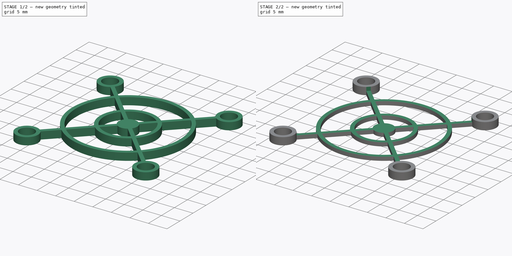
[diagram: build sequence overview — one tinted view per stage of 2, left to right]
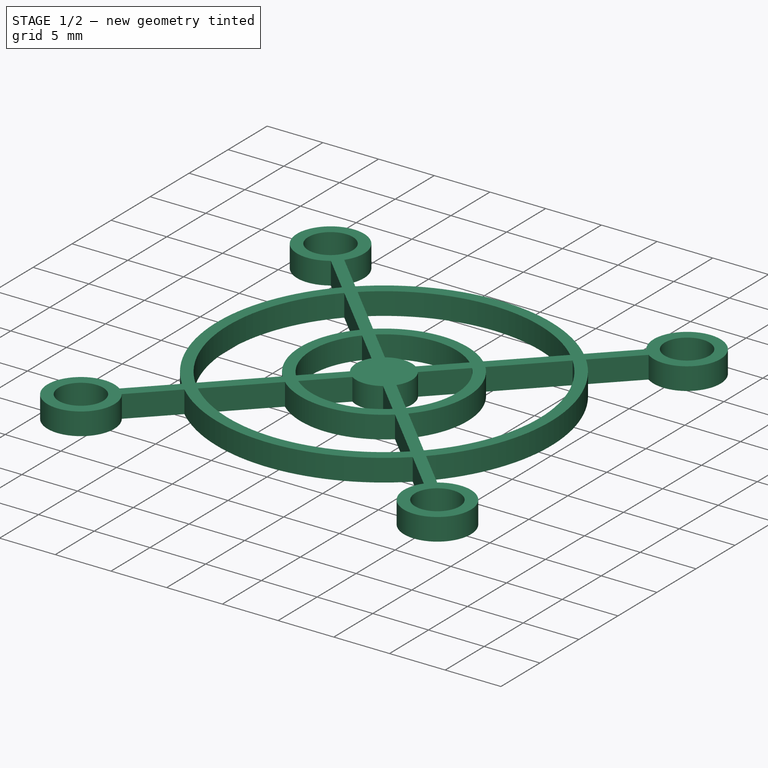
[diagram: stage 1 of 2 — iso view after this stage's code; geometry added in this stage tinted green]
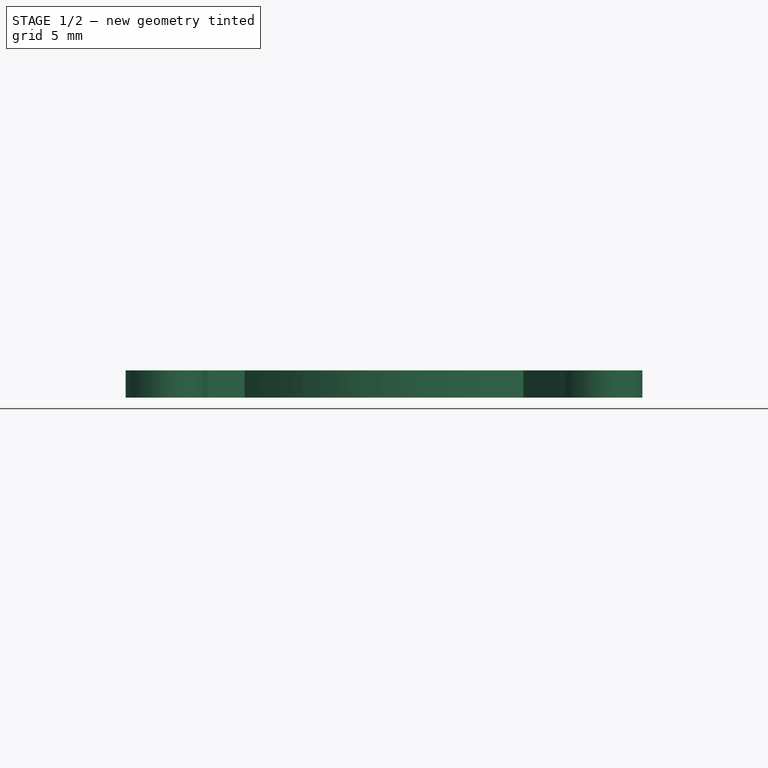
[diagram: stage 1 of 2 — front view after this stage's code; geometry added in this stage tinted green]
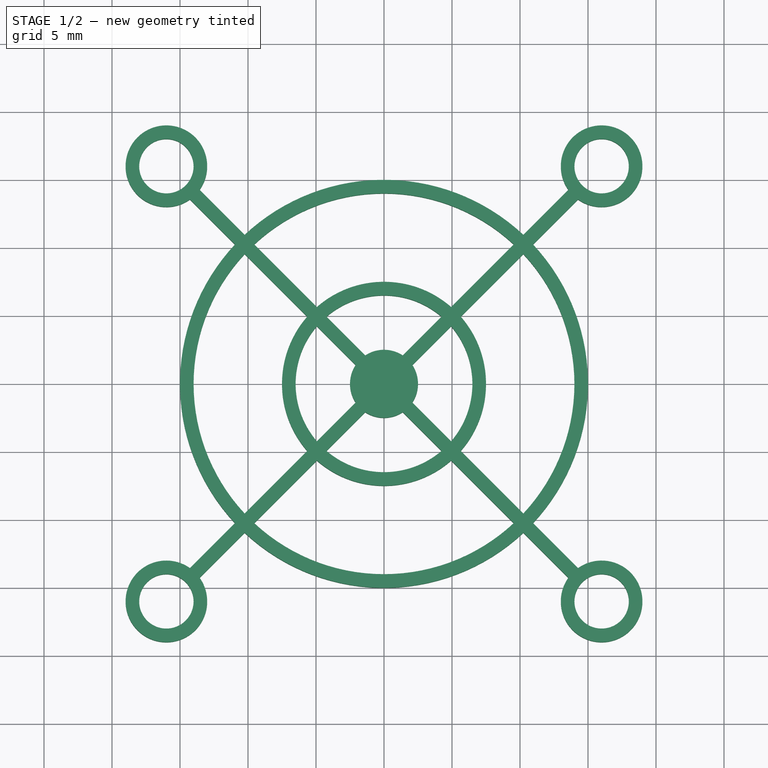
[diagram: stage 1 of 2 — top view after this stage's code; geometry added in this stage tinted green]
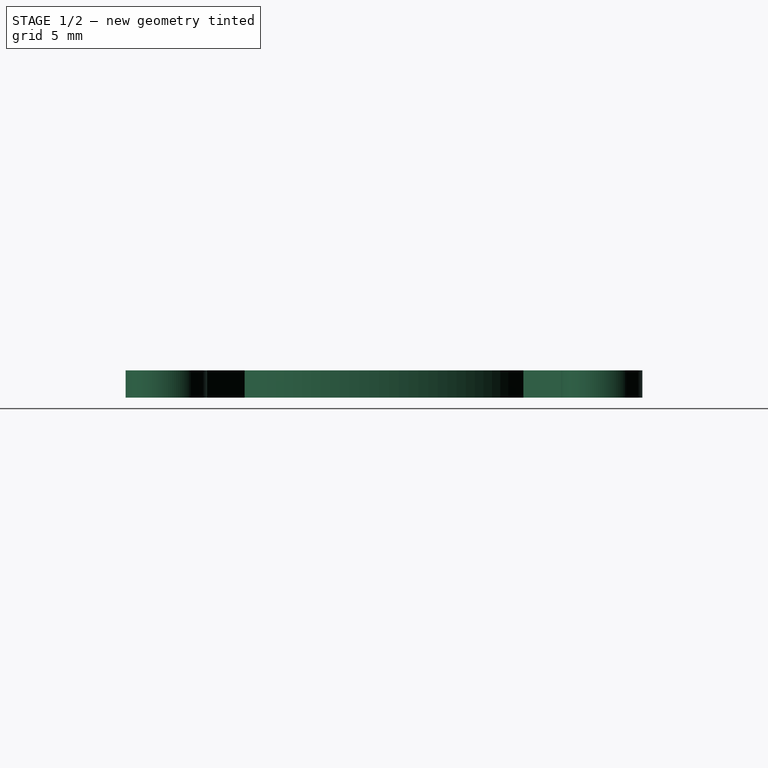
[diagram: stage 1 of 2 — right view after this stage's code; geometry added in this stage tinted green]
FCSTD DOCUMENT  (FreeCAD 0.18R14555 (Git shallow))
Label: fan-cover
License: All rights reserved
LicenseURL: http://en.wikipedia.org/wiki/All_rights_reserved
objects: Sketcher::SketchObject×2, PartDesign::Pad×1, PartDesign::Pocket×1, PartDesign::Body×1
note: 7 computed .brp shape members not serialized (recipe doc carries the construction recipe); baked Part::Feature solids carry a one-line shape summary decoded from their .brp

FEATURE [Sketcher::SketchObject] Sketch
  MapMode = 5
  Support = -> [XY_Plane]
  sketch-geometry (87):
    g0: LineSegment [constr] StartX=0 StartY=0 StartZ=0 EndX=40 EndY=0 EndZ=0
    g1: LineSegment [constr] StartX=40 StartY=0 StartZ=0 EndX=40 EndY=40 EndZ=0
    g2: LineSegment [constr] StartX=40 StartY=40 StartZ=0 EndX=0 EndY=40 EndZ=0
    g3: LineSegment [constr] StartX=0 StartY=40 StartZ=0 EndX=0 EndY=0 EndZ=0
    g4: LineSegment [constr] StartX=4 StartY=4 StartZ=0 EndX=36 EndY=4 EndZ=0
    g5: LineSegment [constr] StartX=36 StartY=4 StartZ=0 EndX=36 EndY=36 EndZ=0
    g6: LineSegment [constr] StartX=36 StartY=36 StartZ=0 EndX=4 EndY=36 EndZ=0
    g7: LineSegment [constr] StartX=4 StartY=36 StartZ=0 EndX=4 EndY=4 EndZ=0
    g8: LineSegment [constr] StartX=0 StartY=0 StartZ=0 EndX=4 EndY=4 EndZ=0
    g9: LineSegment [constr] StartX=4 StartY=36 StartZ=0 EndX=0 EndY=40 EndZ=0
    g10: LineSegment [constr] StartX=36 StartY=36 StartZ=0 EndX=40 EndY=40 EndZ=0
    g11: Circle CenterX=4 CenterY=36 CenterZ=0 NormalX=0 NormalY=0 NormalZ=1 AngleXU=0 Radius=2
    g12: Circle CenterX=36 CenterY=36 CenterZ=0 NormalX=0 NormalY=0 NormalZ=1 AngleXU=0 Radius=2
    g13: Circle CenterX=4 CenterY=4 CenterZ=0 NormalX=0 NormalY=0 NormalZ=1 AngleXU=0 Radius=2
    g14: Circle CenterX=36 CenterY=4 CenterZ=0 NormalX=0 NormalY=0 NormalZ=1 AngleXU=0 Radius=2
    g15: ArcOfCircle CenterX=4 CenterY=36 CenterZ=0 NormalX=0 NormalY=0 NormalZ=1 AngleXU=0 Radius=3 StartAngle=5.66524 EndAngle=11.6135
    g16: ArcOfCircle CenterX=36 CenterY=36 CenterZ=0 NormalX=0 NormalY=0 NormalZ=1 AngleXU=0 Radius=3 StartAngle=4.09444 EndAngle=10.0427
    g17: ArcOfCircle CenterX=36 CenterY=4 CenterZ=0 NormalX=0 NormalY=0 NormalZ=1 AngleXU=0 Radius=3 StartAngle=2.52364 EndAngle=8.47193
    g18: ArcOfCircle CenterX=4 CenterY=4 CenterZ=0 NormalX=0 NormalY=0 NormalZ=1 AngleXU=0 Radius=3 StartAngle=0.952846 EndAngle=6.90114
    g19: LineSegment [constr] StartX=4 StartY=4 StartZ=0 EndX=36 EndY=36 EndZ=0
    g20: LineSegment [constr] StartX=4 StartY=36 StartZ=0 EndX=36 EndY=4 EndZ=0
    g21: ArcOfCircle CenterX=20 CenterY=20 CenterZ=0 NormalX=0 NormalY=0 NormalZ=1 AngleXU=0 Radius=15 StartAngle=2.38953 EndAngle=3.89365
    g22: ArcOfCircle CenterX=20 CenterY=20 CenterZ=0 NormalX=0 NormalY=0 NormalZ=1 AngleXU=0 Radius=14 StartAngle=5.53351 EndAngle=7.03286
    g23: ArcOfCircle CenterX=20 CenterY=20 CenterZ=0 NormalX=0 NormalY=0 NormalZ=1 AngleXU=0 Radius=7.5 StartAngle=2.42291 EndAngle=3.86027
    g24: ArcOfCircle CenterX=20 CenterY=20 CenterZ=0 NormalX=0 NormalY=0 NormalZ=1 AngleXU=0 Radius=6.5 StartAngle=5.57479 EndAngle=6.99158
    g25: ArcOfCircle CenterX=20 CenterY=20 CenterZ=0 NormalX=0 NormalY=0 NormalZ=1 AngleXU=0 Radius=2.5 StartAngle=2.55755 EndAngle=3.72563
    g26: LineSegment StartX=5.7381 StartY=33.5548 StartZ=0 EndX=9.04574 EndY=30.2472 EndZ=0
    g27: LineSegment StartX=6.4452 StartY=34.2619 StartZ=0 EndX=9.75285 EndY=30.9543 EndZ=0
    g28: LineSegment [constr] StartX=5.7381 StartY=33.5548 StartZ=0 EndX=6.4452 EndY=34.2619 EndZ=0
    g29: LineSegment StartX=9.75327 StartY=29.5396 StartZ=0 EndX=14.3549 EndY=24.9379 EndZ=0
    g30: LineSegment StartX=10.4604 StartY=30.2467 StartZ=0 EndX=15.0621 EndY=25.6451 EndZ=0
    g31: LineSegment [constr] StartX=9.75327 StartY=29.5396 StartZ=0 EndX=9.04574 EndY=30.2472 EndZ=0
    g32: LineSegment [constr] StartX=9.75285 StartY=30.9543 StartZ=0 EndX=10.4604 EndY=30.2467 EndZ=0
    g33: LineSegment StartX=15.0639 StartY=24.229 StartZ=0 EndX=17.9144 EndY=21.3785 EndZ=0
    g34: LineSegment StartX=15.771 StartY=24.9361 StartZ=0 EndX=18.6215 EndY=22.0856 EndZ=0
    g35: LineSegment [constr] StartX=15.0639 StartY=24.229 StartZ=0 EndX=14.3549 EndY=24.9379 EndZ=0
    g36: LineSegment [constr] StartX=15.0621 StartY=25.6451 StartZ=0 EndX=15.771 EndY=24.9361 EndZ=0
    g37: LineSegment StartX=33.5548 StartY=5.7381 StartZ=0 EndX=30.2472 EndY=9.04574 EndZ=0
    g38: LineSegment StartX=34.2619 StartY=6.4452 StartZ=0 EndX=30.9543 EndY=9.75285 EndZ=0
    g39: LineSegment StartX=30.2467 StartY=10.4604 StartZ=0 EndX=25.6451 EndY=15.0621 EndZ=0
    g40: LineSegment StartX=24.9379 StartY=14.3549 StartZ=0 EndX=29.5396 EndY=9.75327 EndZ=0
    g41: LineSegment StartX=24.229 StartY=15.0639 StartZ=0 EndX=21.3785 EndY=17.9144 EndZ=0
    g42: LineSegment StartX=22.0856 StartY=18.6215 StartZ=0 EndX=24.9361 EndY=15.771 EndZ=0
    g43: LineSegment [constr] StartX=24.229 StartY=15.0639 StartZ=0 EndX=24.9379 EndY=14.3549 EndZ=0
    g44: LineSegment [constr] StartX=24.9361 StartY=15.771 StartZ=0 EndX=25.6451 EndY=15.0621 EndZ=0
    g45: LineSegment [constr] StartX=29.5396 StartY=9.75327 StartZ=0 EndX=30.2472 EndY=9.04574 EndZ=0
    g46: LineSegment [constr] StartX=30.2467 StartY=10.4604 StartZ=0 EndX=30.9543 EndY=9.75285 EndZ=0
    g47: LineSegment [constr] StartX=21.3785 StartY=17.9144 StartZ=0 EndX=17.9144 EndY=21.3785 EndZ=0
    g48: LineSegment [constr] StartX=22.0856 StartY=18.6215 StartZ=0 EndX=18.6215 EndY=22.0856 EndZ=0
    g49: ArcOfCircle CenterX=20 CenterY=20 CenterZ=0 NormalX=0 NormalY=0 NormalZ=1 AngleXU=0 Radius=15 StartAngle=5.53113 EndAngle=7.03524
    g50: ArcOfCircle CenterX=20 CenterY=20 CenterZ=0 NormalX=0 NormalY=0 NormalZ=1 AngleXU=0 Radius=7.5 StartAngle=5.5645 EndAngle=7.00187
    g51: LineSegment StartX=6.4452 StartY=5.7381 StartZ=0 EndX=9.75285 EndY=9.04574 EndZ=0
    g52: LineSegment StartX=10.4604 StartY=9.75327 StartZ=0 EndX=15.0621 EndY=14.3549 EndZ=0
    g53: LineSegment StartX=15.771 StartY=15.0639 StartZ=0 EndX=18.6215 EndY=17.9144 EndZ=0
    g54: LineSegment StartX=17.9144 StartY=18.6215 StartZ=0 EndX=15.0639 EndY=15.771 EndZ=0
    g55: LineSegment StartX=14.3549 StartY=15.0621 StartZ=0 EndX=9.75327 EndY=10.4604 EndZ=0
    g56: LineSegment StartX=9.04574 StartY=9.75285 StartZ=0 EndX=5.7381 EndY=6.4452 EndZ=0
    g57: LineSegment [constr] StartX=9.75285 StartY=9.04574 StartZ=0 EndX=10.4604 EndY=9.75327 EndZ=0
    g58: LineSegment [constr] StartX=15.0621 StartY=14.3549 StartZ=0 EndX=15.771 EndY=15.0639 EndZ=0
    g59: LineSegment [constr] StartX=15.0639 StartY=15.771 StartZ=0 EndX=14.3549 EndY=15.0621 EndZ=0
    g60: LineSegment [constr] StartX=9.75327 StartY=10.4604 StartZ=0 EndX=9.04574 EndY=9.75285 EndZ=0
    g61: ArcOfCircle CenterX=20 CenterY=20 CenterZ=0 NormalX=0 NormalY=0 NormalZ=1 AngleXU=0 Radius=15 StartAngle=3.96033 EndAngle=5.46445
    g62: ArcOfCircle CenterX=20 CenterY=20 CenterZ=0 NormalX=0 NormalY=0 NormalZ=1 AngleXU=0 Radius=14 StartAngle=3.96271 EndAngle=5.46207
    g63: ArcOfCircle CenterX=20 CenterY=20 CenterZ=0 NormalX=0 NormalY=0 NormalZ=1 AngleXU=0 Radius=7.5 StartAngle=3.99371 EndAngle=5.43107
    g64: ArcOfCircle CenterX=20 CenterY=20 CenterZ=0 NormalX=0 NormalY=0 NormalZ=1 AngleXU=0 Radius=6.5 StartAngle=4.00399 EndAngle=5.42079
    g65: LineSegment [constr] StartX=6.4452 StartY=5.7381 StartZ=0 EndX=5.7381 EndY=6.4452 EndZ=0
    g66: ArcOfCircle CenterX=20 CenterY=20 CenterZ=0 NormalX=0 NormalY=0 NormalZ=1 AngleXU=0 Radius=2.5 StartAngle=4.12835 EndAngle=5.29643
    g67: LineSegment StartX=33.5548 StartY=34.2619 StartZ=0 EndX=30.2472 EndY=30.9543 EndZ=0
    g68: LineSegment [constr] StartX=30.2472 StartY=30.9543 StartZ=0 EndX=29.5396 EndY=30.2467 EndZ=0
    g69: LineSegment StartX=29.5396 StartY=30.2467 StartZ=0 EndX=24.9379 EndY=25.6451 EndZ=0
    g70: LineSegment [constr] StartX=24.9379 StartY=25.6451 StartZ=0 EndX=24.229 EndY=24.9361 EndZ=0
    g71: LineSegment StartX=24.229 StartY=24.9361 StartZ=0 EndX=21.3785 EndY=22.0856 EndZ=0
    g72: LineSegment StartX=22.0856 StartY=21.3785 StartZ=0 EndX=24.9361 EndY=24.229 EndZ=0
    g73: LineSegment [constr] StartX=24.9361 StartY=24.229 StartZ=0 EndX=25.6451 EndY=24.9379 EndZ=0
    g74: LineSegment StartX=25.6451 StartY=24.9379 StartZ=0 EndX=30.2467 EndY=29.5396 EndZ=0
    g75: LineSegment StartX=30.9543 StartY=30.2472 StartZ=0 EndX=34.2619 EndY=33.5548 EndZ=0
    g76: LineSegment [constr] StartX=30.2467 StartY=29.5396 StartZ=0 EndX=30.9543 EndY=30.2472 EndZ=0
    g77: ArcOfCircle CenterX=20 CenterY=20 CenterZ=0 NormalX=0 NormalY=0 NormalZ=1 AngleXU=0 Radius=6.5 StartAngle=0.862397 EndAngle=2.2792
    g78: ArcOfCircle CenterX=20 CenterY=20 CenterZ=0 NormalX=0 NormalY=0 NormalZ=1 AngleXU=0 Radius=7.5 StartAngle=0.852114 EndAngle=2.28948
    g79: ArcOfCircle CenterX=20 CenterY=20 CenterZ=0 NormalX=0 NormalY=0 NormalZ=1 AngleXU=0 Radius=14 StartAngle=0.82112 EndAngle=2.32047
    g80: ArcOfCircle CenterX=20 CenterY=20 CenterZ=0 NormalX=0 NormalY=0 NormalZ=1 AngleXU=0 Radius=15 StartAngle=0.818738 EndAngle=2.32285
    g81: LineSegment [constr] StartX=18.6215 StartY=17.9144 StartZ=0 EndX=22.0856 EndY=21.3785 EndZ=0
    g82: LineSegment [constr] StartX=21.3785 StartY=22.0856 StartZ=0 EndX=17.9144 EndY=18.6215 EndZ=0
    g83: ArcOfCircle CenterX=20 CenterY=20 CenterZ=0 NormalX=0 NormalY=0 NormalZ=1 AngleXU=0 Radius=14 StartAngle=2.39192 EndAngle=3.89127
    g84: ArcOfCircle CenterX=20 CenterY=20 CenterZ=0 NormalX=0 NormalY=0 NormalZ=1 AngleXU=0 Radius=6.5 StartAngle=2.43319 EndAngle=3.84999
    g85: ArcOfCircle CenterX=20 CenterY=20 CenterZ=0 NormalX=0 NormalY=0 NormalZ=1 AngleXU=0 Radius=2.5 StartAngle=0.986756 EndAngle=2.15484
    g86: ArcOfCircle CenterX=20 CenterY=20 CenterZ=0 NormalX=0 NormalY=0 NormalZ=1 AngleXU=0 Radius=2.5 StartAngle=5.69915 EndAngle=6.86723
  constraints (244):
    c: Coincident(g0,g1)
    c: Coincident(g1,g2)
    c: Coincident(g2,g3)
    c: Coincident(g3,g0)
    c: Horizontal(g0)
    c: Horizontal(g2)
    c: Vertical(g1)
    c: Vertical(g3)
    c: Coincident(g0,g-1)
    c: Equal(g2,g1)
    c: DistanceX(g2,g2) = 40
    c: Coincident(g4,g5)
    c: Coincident(g5,g6)
    c: Coincident(g6,g7)
    c: Coincident(g7,g4)
    c: Horizontal(g4)
    c: Horizontal(g6)
    c: Vertical(g5)
    c: Vertical(g7)
    c: Equal(g6,g7)
    c: DistanceX(g6,g6) = 32
    c: Coincident(g8,g-1)
    c: Coincident(g8,g4)
    c: Coincident(g9,g6)
    c: Coincident(g9,g2)
    c: Coincident(g10,g5)
    c: Coincident(g10,g1)
    c: Equal(g10,g9)
    c: Equal(g9,g8)
    c: Coincident(g11,g6)
    c: Coincident(g12,g5)
    c: Coincident(g13,g4)
    c: Coincident(g14,g4)
    c: Equal(g14,g13)
    c: Equal(g13,g11)
    c: Equal(g11,g12)
    c: Radius(g11) = 2
    c: Coincident(g15,g11)
    c: Coincident(g16,g12)
    c: Coincident(g17,g14)
    c: Coincident(g18,g13)
    c: Equal(g15,g16)
    c: Equal(g16,g18)
    c: Equal(g18,g17)
    c: Radius(g15) = 3
    c: Coincident(g19,g13)
    c: Coincident(g19,g12)
    c: Coincident(g20,g11)
    c: Coincident(g20,g14)
    c: PointOnObject(g21,g20)
    c: PointOnObject(g21,g19)
    c: Coincident(g22,g21)
    c: Coincident(g23,g21)
    c: Coincident(g24,g21)
    c: Coincident(g25,g21)
    c: Coincident(g26,g15)
    c: Coincident(g27,g15)
    c: Parallel(g26,g27)
    c: Parallel(g20,g26)
    c: Coincident(g28,g15)
    c: Coincident(g28,g15)
    c: Perpendicular(g20,g28)
    c: Distance(g28) = 1
    c: Coincident(g21,g26)
    c: Coincident(g80,g27)
    c: Radius(g21) = 15
    c: Radius(g22) = 14
    c: PointOnObject(g29,g22)
    c: PointOnObject(g30,g22)
    c: Coincident(g31,g29)
    c: Coincident(g31,g21)
    c: Coincident(g32,g80)
    c: Coincident(g32,g30)
    c: Parallel(g29,g30)
    c: Parallel(g30,g32)
    c: Parallel(g32,g31)
    c: Parallel(g31,g26)
    c: Radius(g23) = 7.5
    c: Radius(g24) = 6.5
    c: Coincident(g23,g29)
    c: Coincident(g78,g30)
    c: PointOnObject(g33,g24)
    c: PointOnObject(g34,g24)
    c: Coincident(g35,g33)
    c: Coincident(g35,g23)
    c: Coincident(g36,g78)
    c: Parallel(g36,g35)
    c: Parallel(g35,g29)
    c: Parallel(g29,g33)
    c: Parallel(g33,g34)
    c: Coincident(g34,g36)
    c: Radius(g25) = 2.5
    c: Coincident(g25,g33)
    c: Coincident(g37,g17)
    c: Coincident(g38,g17)
    c: PointOnObject(g38,g21)
    c: PointOnObject(g39,g23)
    c: PointOnObject(g41,g25)
    c: PointOnObject(g42,g25)
    c: Parallel(g42,g41)
    c: Parallel(g41,g40)
    c: Parallel(g40,g39)
    c: Parallel(g39,g37)
    c: Parallel(g37,g38)
    c: Parallel(g38,g20)
    c: Coincident(g44,g39)
    c: Coincident(g46,g38)
    c: Parallel(g46,g45)
    c: Parallel(g45,g43)
    c: Parallel(g43,g44)
    c: Parallel(g44,g42)
    c: Coincident(g47,g41)
    c: Coincident(g47,g25)
    c: Coincident(g34,g85)
    c: Coincident(g48,g42)
    c: Coincident(g48,g85)
    c: Parallel(g48,g47)
    c: Parallel(g47,g20)
    c: Equal(g21,g49)
    c: Coincident(g61,g37)
    c: Coincident(g21,g49)
    c: PointOnObject(g49,g38)
    c: Coincident(g22,g39)
    c: Coincident(g62,g40)
    c: Equal(g23,g50)
    c: Coincident(g63,g40)
    c: Coincident(g23,g50)
    c: PointOnObject(g50,g39)
    c: Coincident(g24,g42)
    c: Coincident(g51,g18)
    c: PointOnObject(g51,g21)
    c: PointOnObject(g52,g22)
    c: PointOnObject(g58,g23)
    c: PointOnObject(g53,g24)
    c: PointOnObject(g53,g25)
    c: Coincident(g56,g18)
    c: Coincident(g57,g51)
    c: Coincident(g57,g52)
    c: Coincident(g58,g53)
    c: Equal(g21,g61)
    c: Coincident(g21,g56)
    c: Coincident(g21,g61)
    c: Equal(g22,g62)
    c: Coincident(g83,g55)
    c: Coincident(g22,g62)
    c: PointOnObject(g62,g52)
    c: PointOnObject(g61,g51)
    c: Coincident(g63,g52)
    c: Coincident(g23,g63)
    c: Coincident(g23,g55)
    c: Equal(g24,g64)
    c: Coincident(g84,g54)
    c: Coincident(g24,g64)
    c: PointOnObject(g64,g53)
    c: Parallel(g52,g57)
    c: Parallel(g57,g51)
    c: Parallel(g51,g19)
    c: Parallel(g19,g56)
    c: Parallel(g56,g55)
    c: Parallel(g55,g60)
    c: Parallel(g60,g58)
    c: Parallel(g58,g59)
    c: Parallel(g59,g54)
    c: Parallel(g54,g53)
    c: Coincident(g84,g59)
    c: Coincident(g59,g23)
    c: Coincident(g58,g52)
    c: Coincident(g65,g18)
    c: Coincident(g65,g18)
    c: Perpendicular(g56,g65)
    c: Coincident(g60,g21)
    c: Coincident(g83,g60)
    c: Equal(g25,g66)
    c: Coincident(g25,g54)
    c: Coincident(g25,g66)
    c: PointOnObject(g66,g53)
    c: Equal(g65,g28)
    c: Coincident(g67,g16)
    c: PointOnObject(g67,g49)
    c: Coincident(g68,g67)
    c: PointOnObject(g70,g24)
    c: Coincident(g71,g70)
    c: Coincident(g75,g16)
    c: Equal(g24,g77)
    c: Coincident(g24,g72)
    c: Coincident(g24,g77)
    c: PointOnObject(g77,g70)
    c: Equal(g50,g78)
    c: Coincident(g78,g69)
    c: Coincident(g50,g78)
    c: Coincident(g50,g73)
    c: Equal(g22,g79)
    c: Coincident(g79,g68)
    c: Coincident(g22,g79)
    c: Coincident(g22,g74)
    c: Equal(g49,g80)
    c: Coincident(g49,g75)
    c: Coincident(g49,g80)
    c: PointOnObject(g80,g67)
    c: Parallel(g75,g67)
    c: Parallel(g67,g68)
    c: Parallel(g68,g76)
    c: Parallel(g76,g74)
    c: Parallel(g74,g69)
    c: Parallel(g72,g73)
    c: Parallel(g73,g70)
    c: Parallel(g70,g71)
    c: Parallel(g71,g74)
    c: Parallel(g69,g19)
    c: Coincident(g81,g53)
    c: Coincident(g82,g25)
    c: Parallel(g81,g82)
    c: Parallel(g82,g19)
    c: Coincident(g70,g69)
    c: Coincident(g73,g24)
    c: Coincident(g74,g50)
    c: Coincident(g22,g76)
    c: Coincident(g68,g69)
    c: Coincident(g49,g76)
    c: Coincident(g46,g22)
    c: Coincident(g45,g40)
    c: Coincident(g44,g24)
    c: Coincident(g43,g41)
    c: Coincident(g64,g41)
    c: Coincident(g43,g40)
    c: Coincident(g37,g45)
    c: Equal(g79,g83)
    c: PointOnObject(g79,g30)
    c: Coincident(g79,g83)
    c: PointOnObject(g83,g29)
    c: Equal(g77,g84)
    c: PointOnObject(g84,g33)
    c: Coincident(g77,g84)
    c: PointOnObject(g77,g34)
    c: Equal(g66,g85)
    c: Coincident(g85,g71)
    c: Coincident(g66,g85)
    c: Coincident(g86,g72)
    c: Coincident(g86,g81)
    c: Coincident(g82,g71)
    c: Equal(g66,g86)
    c: PointOnObject(g86,g48)
    c: Coincident(g66,g86)
    c: PointOnObject(g66,g41)
FEATURE [PartDesign::Pad] Pad
  Length = 2
  Length2 = 100
  Profile = -> Sketch
  Type = 0
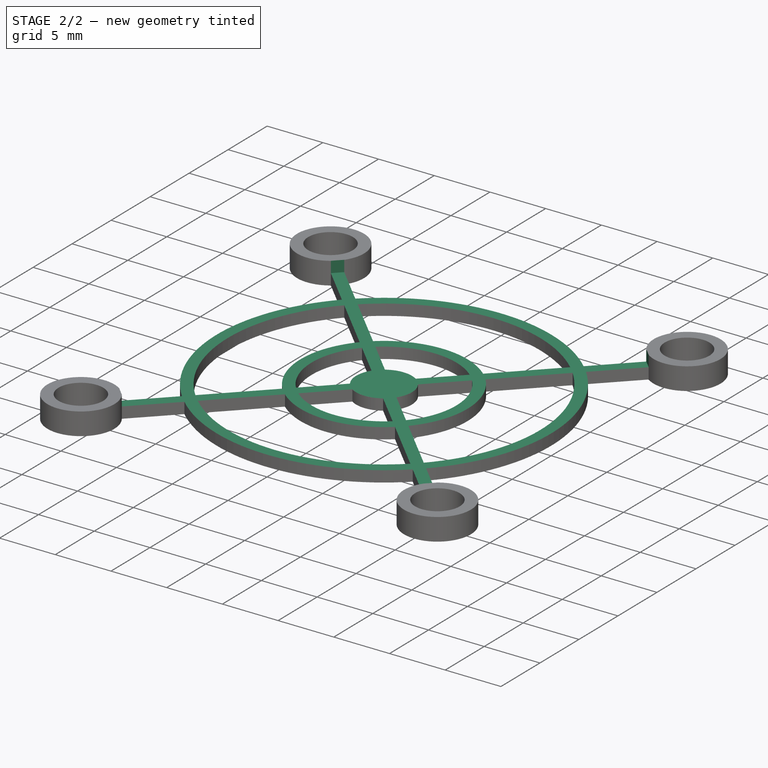
[diagram: stage 2 of 2 — iso view after this stage's code; geometry added in this stage tinted green]
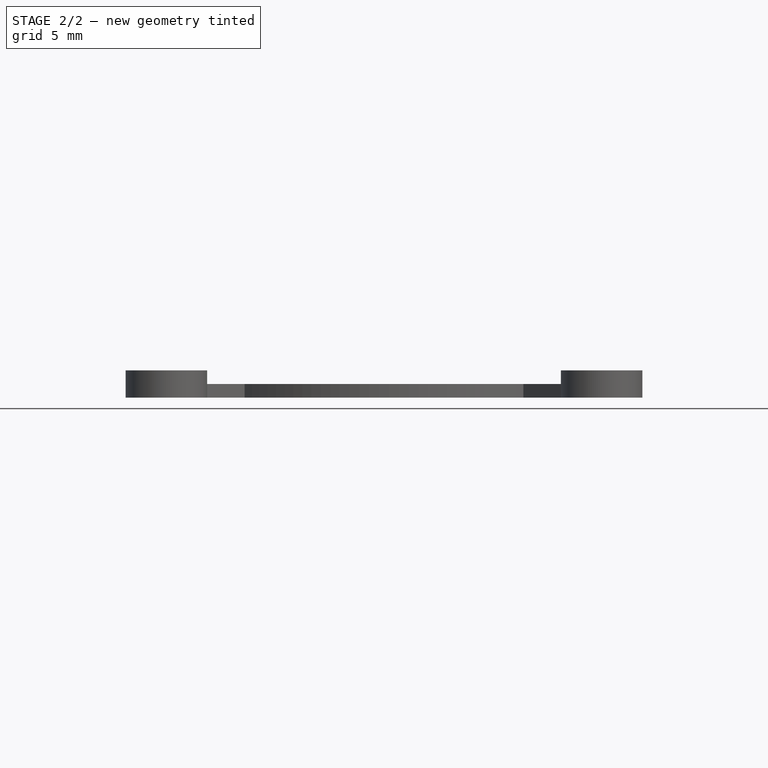
[diagram: stage 2 of 2 — front view after this stage's code; geometry added in this stage tinted green]
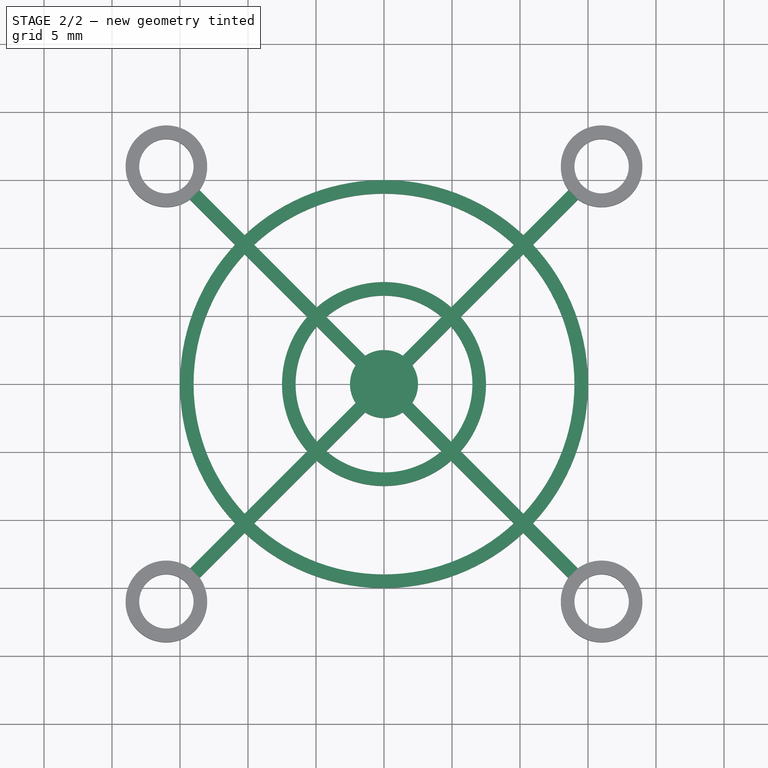
[diagram: stage 2 of 2 — top view after this stage's code; geometry added in this stage tinted green]
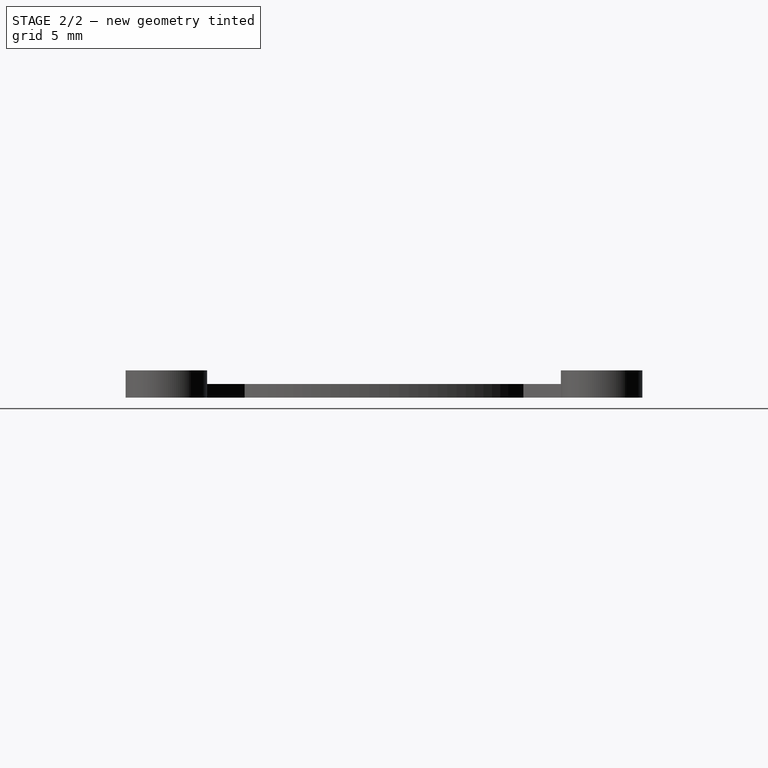
[diagram: stage 2 of 2 — right view after this stage's code; geometry added in this stage tinted green]
FEATURE [Sketcher::SketchObject] Sketch001
  ExternalGeometry = -> [Pad]
  MapMode = 5
  Placement = pos=(0,0,2) rot=(0,0,1;0rad)
  Support = -> [Pad]
  sketch-geometry (1):
    g0: Circle CenterX=20 CenterY=20 CenterZ=0 NormalX=0 NormalY=0 NormalZ=1 AngleXU=0 Radius=19.6757
  constraints (2):
    c: Coincident(g0,g-3)
    c: PointOnObject(g-4,g0)
FEATURE [PartDesign::Pocket] Pocket
  BaseFeature = -> Pad
  Length = 1
  Length2 = 100
  Profile = -> Sketch001
  Type = 0
FEATURE [PartDesign::Body] Body
  Group = -> [Sketch,Pad,Sketch001,Pocket]
  Origin = -> Origin
  Tip = -> Pocket
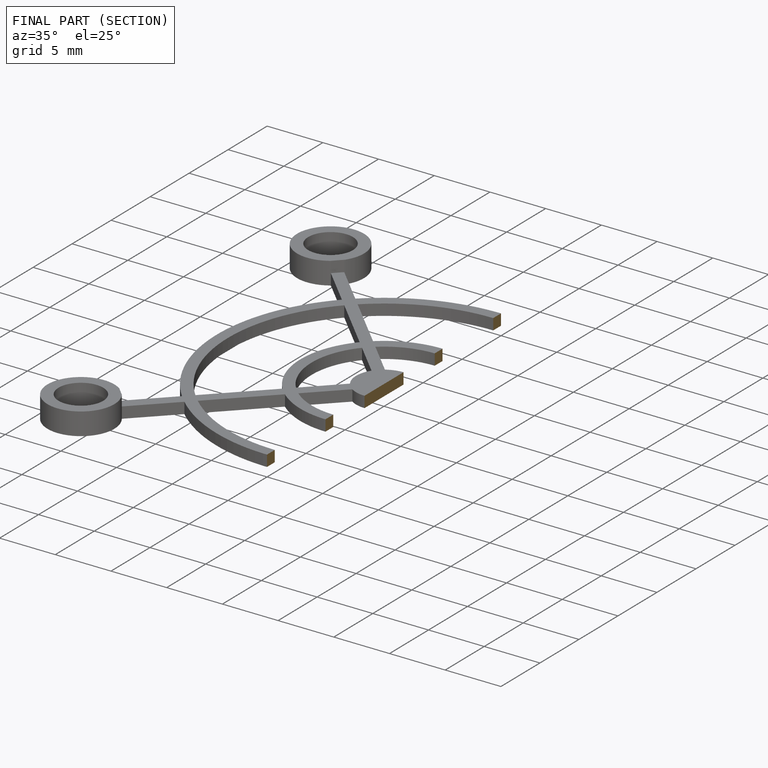
[diagram: finished part — half-section view (interior)]
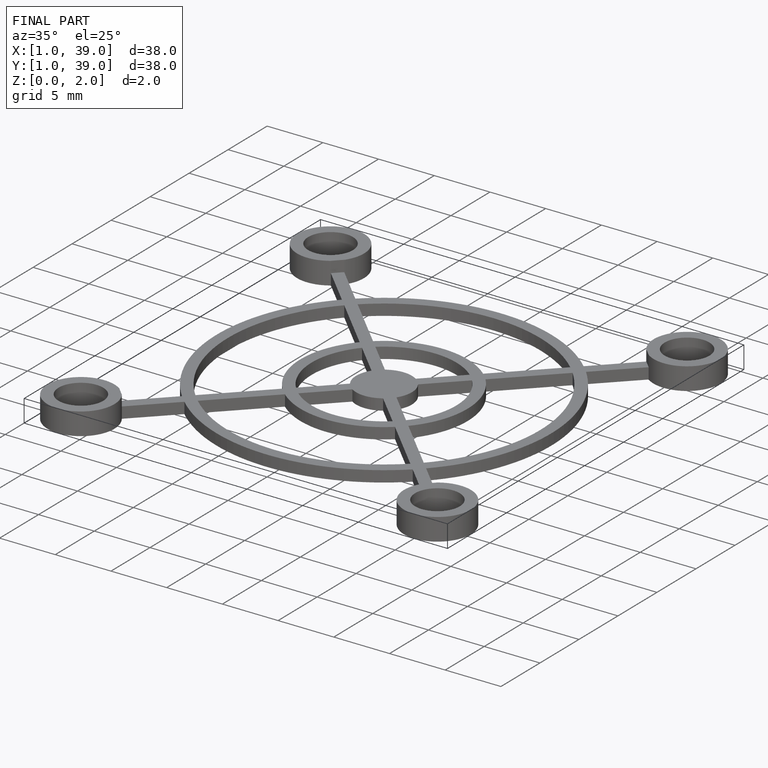
[diagram: finished part — iso view with bounding-box wireframe]
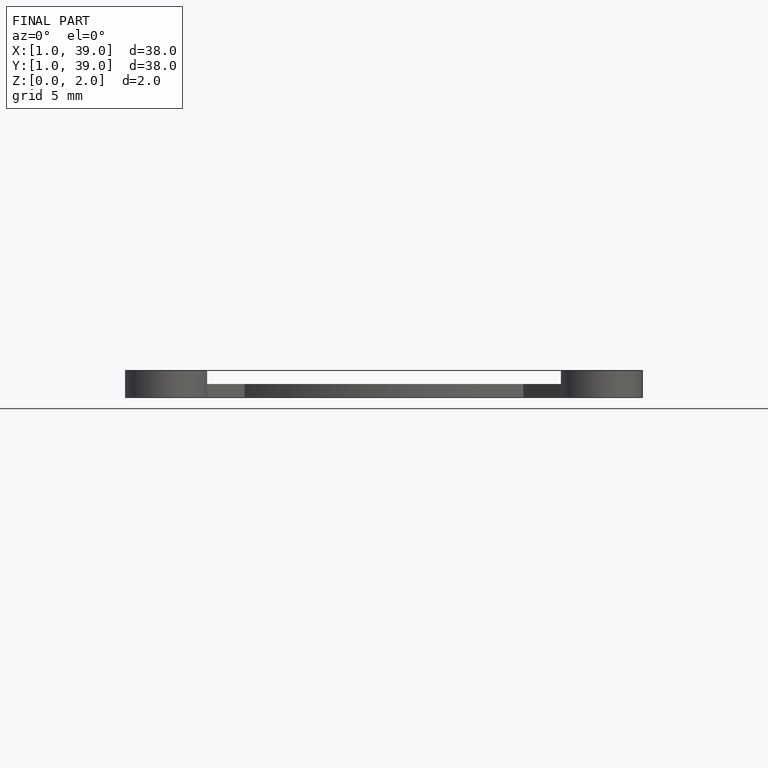
[diagram: finished part — front view with bounding-box wireframe]
